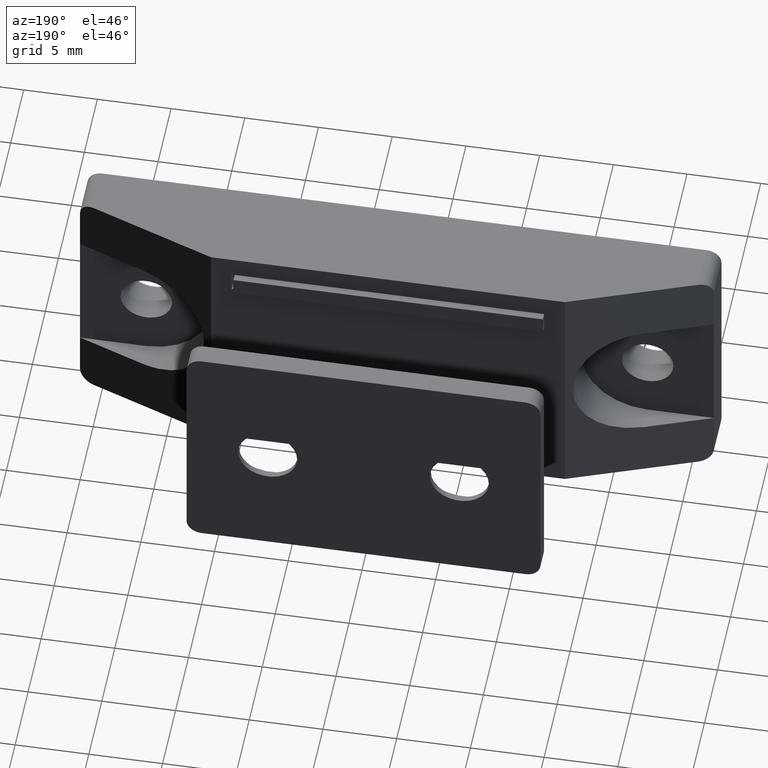
[diagram: clean part render]
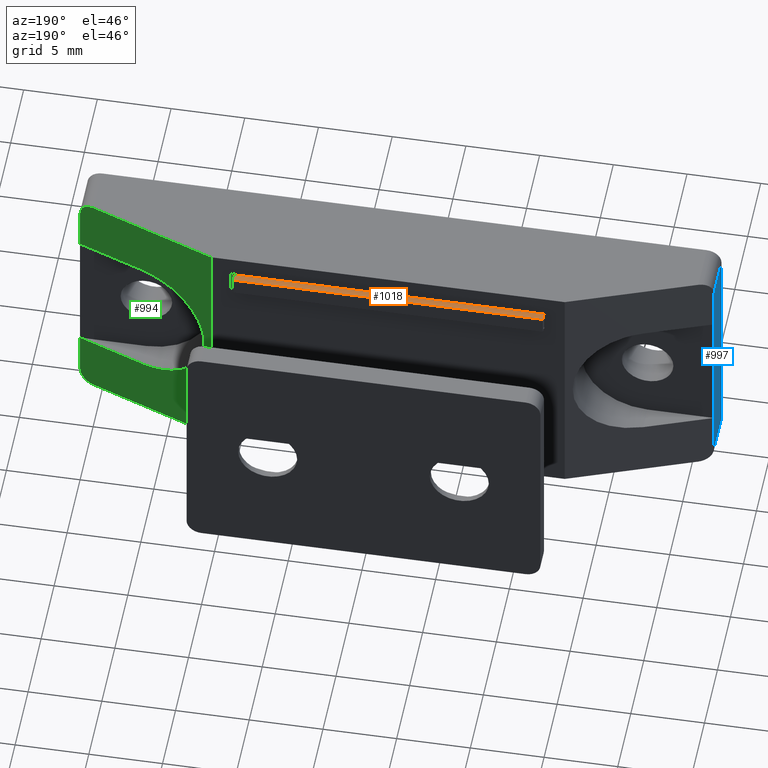
[diagram: same view with three faces highlighted in distinct colors, each labeled with its STEP entity id]
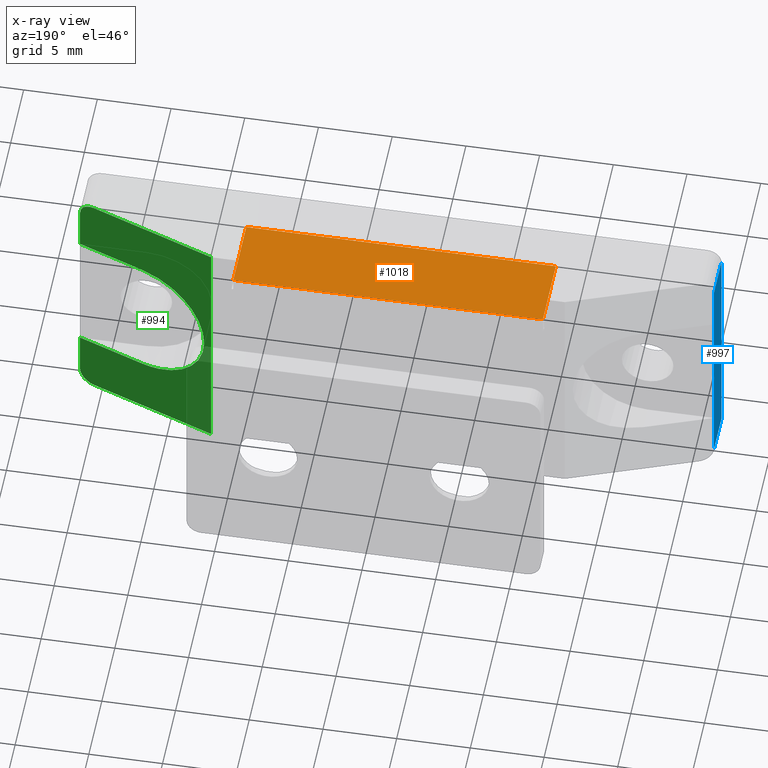
[diagram: x-ray of the same camera — body ghosted, the three highlighted faces saturated]
A machine part, auxiliary view with three faces highlighted in distinct colors.
The next image is the same camera in x-ray (body ghosted, the three faces saturated) — at least one of them is partly hidden behind the body in this view.
Their STEP definitions:

[orange] entity #1018 — the highlighted planar face has unit normal (0, -0, 1).
#94=PLANE('',#1113);
#152=FACE_OUTER_BOUND('',#226,.T.);
#226=EDGE_LOOP('',(#928,#929,#930,#931));
#328=LINE('',#1675,#430);
#329=LINE('',#1677,#431);
#330=LINE('',#1679,#432);
#331=LINE('',#1680,#433);
#430=VECTOR('',#1385,21.);
#431=VECTOR('',#1386,5.);
#432=VECTOR('',#1387,21.);
#433=VECTOR('',#1388,5.);
#548=VERTEX_POINT('',#1673);
#549=VERTEX_POINT('',#1674);
#550=VERTEX_POINT('',#1676);
#551=VERTEX_POINT('',#1678);
#676=EDGE_CURVE('',#548,#549,#328,.T.);
#677=EDGE_CURVE('',#548,#550,#329,.T.);
#678=EDGE_CURVE('',#551,#550,#330,.T.);
#679=EDGE_CURVE('',#549,#551,#331,.T.);
#928=ORIENTED_EDGE('',*,*,#676,.F.);
#929=ORIENTED_EDGE('',*,*,#677,.T.);
#930=ORIENTED_EDGE('',*,*,#678,.F.);
#931=ORIENTED_EDGE('',*,*,#679,.F.);
#1018=ADVANCED_FACE('',(#152),#94,.T.);
#1113=AXIS2_PLACEMENT_3D('',#1672,#1383,#1384);
#1383=DIRECTION('center_axis',(0.,1.,0.));
#1384=DIRECTION('ref_axis',(1.,0.,0.));
#1385=DIRECTION('',(-1.,0.,0.));
#1386=DIRECTION('',(0.,0.,-1.));
#1387=DIRECTION('',(1.,0.,0.));
#1388=DIRECTION('',(0.,0.,-1.));
#1672=CARTESIAN_POINT('Origin',(-10.5,7.,0.6));
#1673=CARTESIAN_POINT('',(10.5,7.,0.6));
#1674=CARTESIAN_POINT('',(-10.5,7.,0.6));
#1675=CARTESIAN_POINT('',(10.5,7.,0.6));
#1676=CARTESIAN_POINT('',(10.5,7.,-4.4));
#1677=CARTESIAN_POINT('',(10.5,7.,0.6));
#1678=CARTESIAN_POINT('',(-10.5,7.,-4.4));
#1679=CARTESIAN_POINT('',(10.5,7.,-4.4));
#1680=CARTESIAN_POINT('',(-10.5,7.,0.6));

[blue] entity #997 — the highlighted planar face has unit normal (-1, 0, 0).
#81=PLANE('',#1076);
#131=FACE_OUTER_BOUND('',#197,.T.);
#197=EDGE_LOOP('',(#838,#839,#840,#841,#842,#843));
#239=LINE('',#1424,#341);
#245=LINE('',#1437,#347);
#249=LINE('',#1456,#351);
#256=LINE('',#1482,#358);
#298=LINE('',#1575,#400);
#299=LINE('',#1576,#401);
#341=VECTOR('',#1132,2.9);
#347=VECTOR('',#1142,15.);
#351=VECTOR('',#1160,2.9);
#358=VECTOR('',#1187,9.);
#400=VECTOR('',#1279,3.);
#401=VECTOR('',#1280,3.);
#466=VERTEX_POINT('',#1417);
#469=VERTEX_POINT('',#1422);
#474=VERTEX_POINT('',#1436);
#481=VERTEX_POINT('',#1452);
#490=VERTEX_POINT('',#1480);
#491=VERTEX_POINT('',#1481);
#559=EDGE_CURVE('',#469,#466,#239,.T.);
#565=EDGE_CURVE('',#474,#466,#245,.T.);
#575=EDGE_CURVE('',#474,#481,#249,.T.);
#586=EDGE_CURVE('',#490,#491,#256,.T.);
#632=EDGE_CURVE('',#491,#481,#298,.T.);
#633=EDGE_CURVE('',#469,#490,#299,.T.);
#838=ORIENTED_EDGE('',*,*,#559,.F.);
#839=ORIENTED_EDGE('',*,*,#633,.T.);
#840=ORIENTED_EDGE('',*,*,#586,.T.);
#841=ORIENTED_EDGE('',*,*,#632,.T.);
#842=ORIENTED_EDGE('',*,*,#575,.F.);
#843=ORIENTED_EDGE('',*,*,#565,.T.);
#997=ADVANCED_FACE('',(#131),#81,.T.);
#1076=AXIS2_PLACEMENT_3D('',#1577,#1281,#1282);
#1132=DIRECTION('',(0.,0.,-1.));
#1142=DIRECTION('',(0.,-1.,0.));
#1160=DIRECTION('',(0.,0.,1.));
#1187=DIRECTION('',(0.,1.,0.));
#1279=DIRECTION('',(0.,1.,0.));
#1280=DIRECTION('',(0.,1.,0.));
#1281=DIRECTION('center_axis',(-1.,0.,0.));
#1282=DIRECTION('ref_axis',(0.,0.,1.));
#1417=CARTESIAN_POINT('',(-21.5,-7.5,-6.4));
#1422=CARTESIAN_POINT('',(-21.5,-7.5,-3.5));
#1424=CARTESIAN_POINT('',(-21.5,-7.5,-4.8));
#1436=CARTESIAN_POINT('',(-21.5,7.5,-6.4));
#1437=CARTESIAN_POINT('',(-21.5,0.,-6.4));
#1452=CARTESIAN_POINT('',(-21.5,7.5,-3.5));
#1456=CARTESIAN_POINT('',(-21.5,7.5,-4.8));
#1480=CARTESIAN_POINT('',(-21.5,-4.5,-3.5));
#1481=CARTESIAN_POINT('',(-21.5,4.5,-3.5));
#1482=CARTESIAN_POINT('',(-21.5,0.,-3.5));
#1575=CARTESIAN_POINT('',(-21.5,0.,-3.5));
#1576=CARTESIAN_POINT('',(-21.5,0.,-3.5));
#1577=CARTESIAN_POINT('Origin',(-21.5,0.,-6.4));

[green] entity #994 — the highlighted planar face has unit normal (0.3457, 0.9383, -0).
#78=PLANE('',#1073);
#128=FACE_OUTER_BOUND('',#192,.T.);
#192=EDGE_LOOP('',(#806,#807,#808,#809,#810,#811,#812,#813,#814,#815));
#234=ELLIPSE('',#1043,1.06570824901666,1.);
#235=ELLIPSE('',#1045,1.06570824901666,1.);
#237=ELLIPSE('',#1060,4.79568712057498,4.5);
#242=LINE('',#1431,#344);
#252=LINE('',#1463,#354);
#266=LINE('',#1509,#368);
#269=LINE('',#1516,#371);
#294=LINE('',#1568,#396);
#295=LINE('',#1569,#397);
#296=LINE('',#1571,#398);
#344=VECTOR('',#1137,9.05852011664163);
#354=VECTOR('',#1165,9.05852011664163);
#368=VECTOR('',#1213,4.79568712057498);
#371=VECTOR('',#1222,4.79568712057498);
#396=VECTOR('',#1269,3.);
#397=VECTOR('',#1270,3.);
#398=VECTOR('',#1273,17.);
#471=VERTEX_POINT('',#1428);
#472=VERTEX_POINT('',#1430);
#484=VERTEX_POINT('',#1460);
#485=VERTEX_POINT('',#1462);
#486=VERTEX_POINT('',#1466);
#487=VERTEX_POINT('',#1470);
#496=VERTEX_POINT('',#1499);
#497=VERTEX_POINT('',#1500);
#500=VERTEX_POINT('',#1508);
#501=VERTEX_POINT('',#1512);
#562=EDGE_CURVE('',#471,#472,#242,.T.);
#578=EDGE_CURVE('',#484,#485,#252,.T.);
#580=EDGE_CURVE('',#485,#486,#234,.T.);
#582=EDGE_CURVE('',#487,#471,#235,.T.);
#599=EDGE_CURVE('',#496,#500,#266,.T.);
#601=EDGE_CURVE('',#500,#501,#237,.T.);
#603=EDGE_CURVE('',#501,#497,#269,.T.);
#628=EDGE_CURVE('',#497,#486,#294,.T.);
#629=EDGE_CURVE('',#487,#496,#295,.T.);
#630=EDGE_CURVE('',#472,#484,#296,.T.);
#806=ORIENTED_EDGE('',*,*,#580,.F.);
#807=ORIENTED_EDGE('',*,*,#578,.F.);
#808=ORIENTED_EDGE('',*,*,#630,.F.);
#809=ORIENTED_EDGE('',*,*,#562,.F.);
#810=ORIENTED_EDGE('',*,*,#582,.F.);
#811=ORIENTED_EDGE('',*,*,#629,.T.);
#812=ORIENTED_EDGE('',*,*,#599,.T.);
#813=ORIENTED_EDGE('',*,*,#601,.T.);
#814=ORIENTED_EDGE('',*,*,#603,.T.);
#815=ORIENTED_EDGE('',*,*,#628,.T.);
#994=ADVANCED_FACE('',(#128),#78,.T.);
#1043=AXIS2_PLACEMENT_3D('',#1467,#1169,#1170);
#1045=AXIS2_PLACEMENT_3D('',#1471,#1174,#1175);
#1060=AXIS2_PLACEMENT_3D('',#1513,#1217,#1218);
#1073=AXIS2_PLACEMENT_3D('',#1570,#1271,#1272);
#1137=DIRECTION('',(-0.93834311681711,0.,0.345705358827357));
#1165=DIRECTION('',(0.93834311681711,0.,-0.345705358827357));
#1169=DIRECTION('center_axis',(-0.345705358827357,0.,-0.93834311681711));
#1170=DIRECTION('ref_axis',(0.93834311681711,4.55774433313889E-16,-0.345705358827357));
#1174=DIRECTION('center_axis',(-0.345705358827357,0.,-0.93834311681711));
#1175=DIRECTION('ref_axis',(0.93834311681711,-4.55774433313889E-16,-0.345705358827357));
#1213=DIRECTION('',(-0.93834311681711,-6.51106302986055E-17,0.345705358827357));
#1217=DIRECTION('center_axis',(-0.345705358827357,0.,-0.93834311681711));
#1218=DIRECTION('ref_axis',(0.93834311681711,0.,-0.345705358827357));
#1222=DIRECTION('',(0.93834311681711,-6.51106302986055E-17,-0.345705358827357));
#1269=DIRECTION('',(0.,1.,0.));
#1270=DIRECTION('',(0.,1.,0.));
#1271=DIRECTION('center_axis',(0.345705358827357,0.,0.93834311681711));
#1272=DIRECTION('ref_axis',(0.93834311681711,0.,-0.345705358827357));
#1273=DIRECTION('',(0.,1.,0.));
#1428=CARTESIAN_POINT('',(20.5,-8.5,-3.13157894736842));
#1430=CARTESIAN_POINT('',(12.,-8.5,0.));
#1431=CARTESIAN_POINT('',(12.,-8.5,0.));
#1460=CARTESIAN_POINT('',(12.,8.5,0.));
#1462=CARTESIAN_POINT('',(20.5,8.5,-3.13157894736842));
#1463=CARTESIAN_POINT('',(12.,8.5,0.));
#1466=CARTESIAN_POINT('',(21.5,7.5,-3.5));
#1467=CARTESIAN_POINT('Origin',(20.5,7.5,-3.13157894736842));
#1470=CARTESIAN_POINT('',(21.5,-7.5,-3.5));
#1471=CARTESIAN_POINT('Origin',(20.5,-7.5,-3.13157894736842));
#1499=CARTESIAN_POINT('',(21.5,-4.5,-3.5));
#1500=CARTESIAN_POINT('',(21.5,4.5,-3.5));
#1508=CARTESIAN_POINT('',(17.,-4.5,-1.8421052631579));
#1509=CARTESIAN_POINT('',(17.723170895711,-4.5,-2.10853664578825));
#1512=CARTESIAN_POINT('',(17.,4.5,-1.8421052631579));
#1513=CARTESIAN_POINT('Origin',(17.,0.,-1.8421052631579));
#1516=CARTESIAN_POINT('',(14.2012195121951,4.5,-0.810975609756098));
#1568=CARTESIAN_POINT('',(21.5,0.,-3.5));
#1569=CARTESIAN_POINT('',(21.5,0.,-3.5));
#1570=CARTESIAN_POINT('Origin',(12.,0.,0.));
#1571=CARTESIAN_POINT('',(12.,0.,0.));